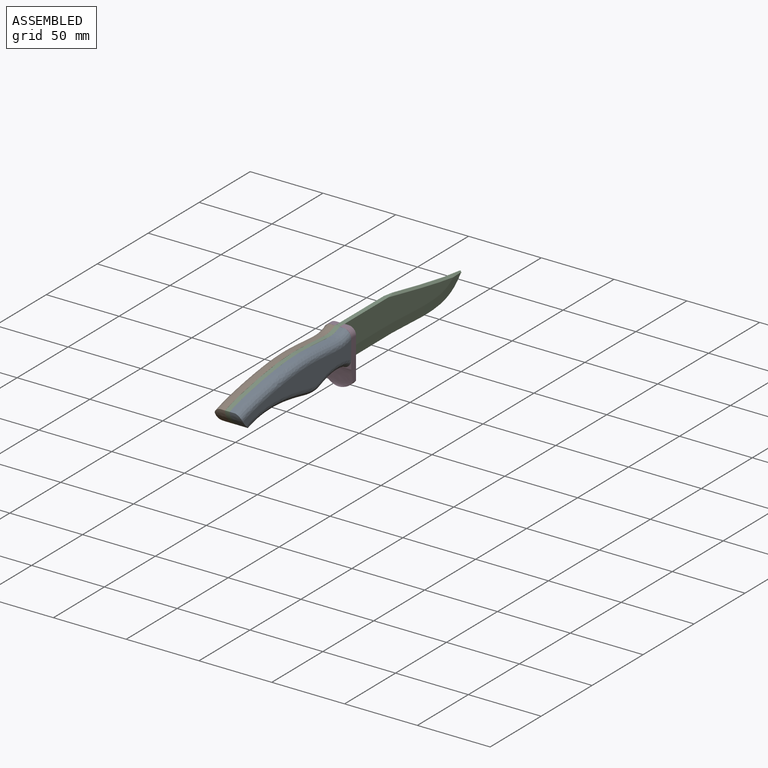
[diagram: assembled view]
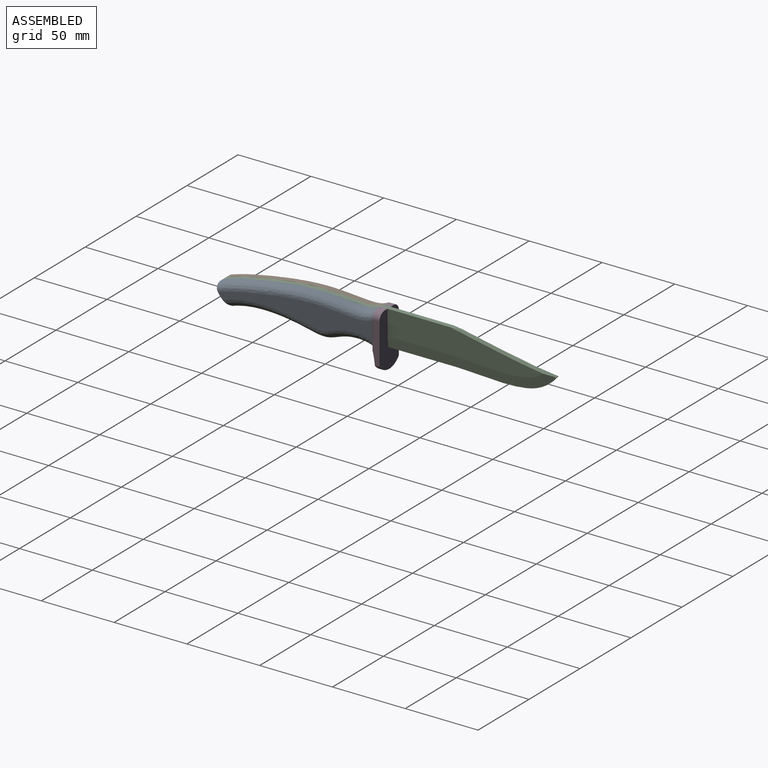
[diagram: assembled view, second angle]
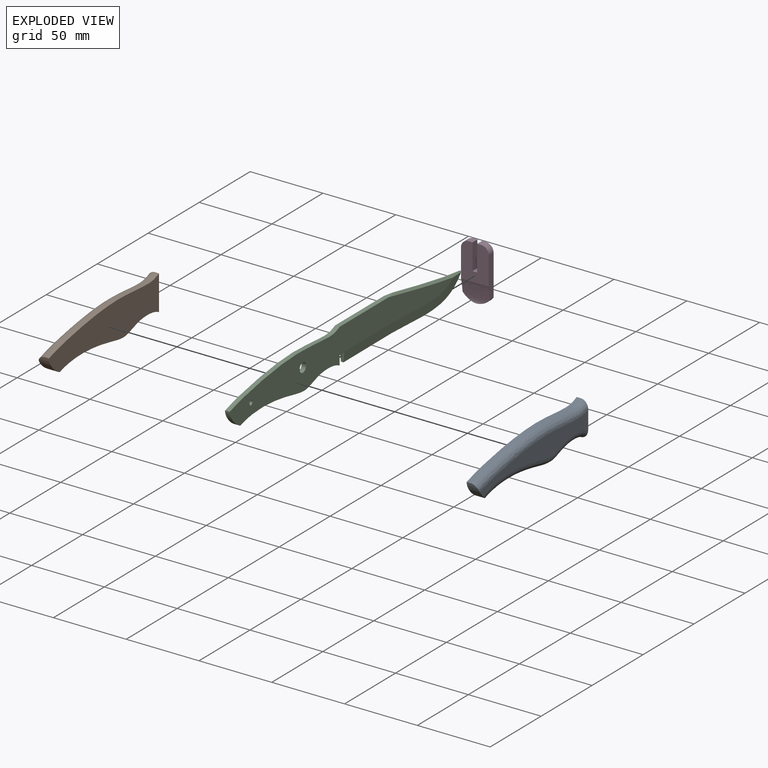
[diagram: exploded view]
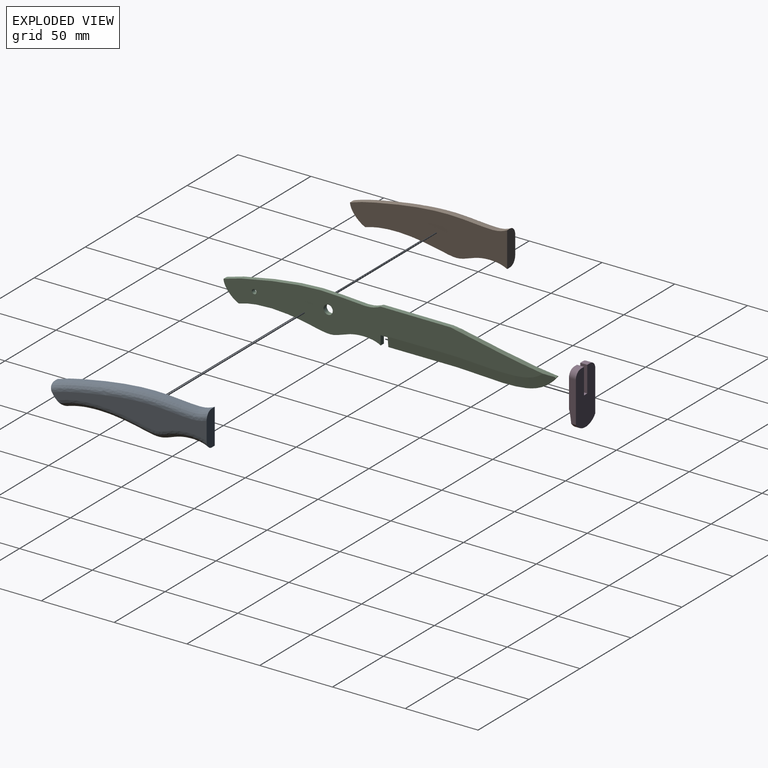
[diagram: exploded view, second angle]
ASSEMBLY  parts=4 mates=3
PART A: 8 faces, bbox 8.9x112.9x28.9 mm
  f0: extruded ~97.47x5.39mm, area 283.7mm2, adj f1,f3,f4,f7
  f1: plane 25.04x8.87mm, normal (0,1,0), area 179mm2, adj f0,f2,f4,f5,f6,f7
  f2: extruded ~107.95x11.57mm, area 312.7mm2, adj f1,f3,f4,f6
  f3: extruded ~12.54x10.48mm, area 106.7mm2, adj f0,f2,f4,f5,f6,f7
  f4: plane 107.95x27.95mm, normal (-1,0,0), area 2068.5mm2, adj f0,f1,f2,f3
  f5: plane 106.32x15.83mm, normal (1,0,0), area 996.6mm2, adj f1,f3,f6,f7
  f6: bspline ~111.25x16.86mm, area 865.5mm2, adj f1,f2,f3,f5
  f7: bspline ~108.56x10.48mm, area 810.4mm2, adj f0,f1,f3,f5
PART B: 8 faces, bbox 8.9x112.9x28.9 mm
  f0: extruded ~97.47x5.39mm, area 283.7mm2, adj f1,f3,f4,f7
  f1: plane 25.04x8.87mm, normal (0,1,0), area 179mm2, adj f0,f2,f4,f5,f6,f7
  f2: extruded ~107.95x11.57mm, area 312.7mm2, adj f1,f3,f4,f6
  f3: extruded ~12.54x10.48mm, area 106.7mm2, adj f0,f2,f4,f5,f6,f7
  f4: plane 107.95x27.95mm, normal (1,0,0), area 2068.5mm2, adj f0,f1,f2,f3
  f5: plane 106.32x15.83mm, normal (-1,0,0), area 996.7mm2, adj f1,f3,f6,f7
  f6: bspline ~111.25x16.86mm, area 865.5mm2, adj f1,f2,f3,f5
  f7: bspline ~108.56x10.48mm, area 810.4mm2, adj f0,f1,f3,f5
PART C: 22 faces, bbox 3.2x232.2x29.3 mm
  f0: plane 6.35x3.08mm, normal (0,-1,0), area 15.3mm2, adj f1,f4,f15,f18
  f1: extruded ~115.89x13.71mm, area 209.7mm2, adj f0,f2,f14,f15,f17,f18,f20,f21
  f2: extruded ~66.35x11.57mm, area 42.8mm2, adj f1,f5,f20,f21
  f3: plane 6.35x3.18mm, normal (0,1,0), area 20.2mm2, adj f4,f11,f12,f13
  f4: plane 4.76x3.18mm, normal (0,0,-1), area 15.1mm2, adj f0,f3,f12,f13,f16,f19
  f5: plane 49.54x3.18mm, normal (0,0,1), area 149.2mm2, adj f2,f6,f12,f13,f20,f21
  f6: plane 4.76x3.18mm, normal (0,0,1), area 15.1mm2, adj f5,f7,f12,f13
  f7: extruded ~107.95x11.57mm, area 347.5mm2, adj f6,f8,f12,f13
  f8: extruded ~12.54x10.48mm, area 54.1mm2, adj f7,f11,f12,f13
  f9: cylinder r=3.17mm len=6.35mm, axis (-1,0,0), area 63.3mm2, adj f12,f13
  f10: cylinder r=1.59mm len=3.18mm, axis (-1,0,0), area 31.7mm2, adj f12,f13
  f11: extruded ~97.47x5.39mm, area 315.2mm2, adj f3,f8,f12,f13
  f12: plane 219.35x27.96mm, normal (1,0,0), area 3569.2mm2, adj f3,f4,f5,f6,f7,f8,f9,f10
  f13: plane 219.35x27.96mm, normal (-1,0,0), area 3569.2mm2, adj f3,f4,f5,f6,f7,f8,f9,f10
  f14: plane 0.59x0.45mm, normal (0,-0.59,-0.81), area 0.2mm2, adj f1,f15,f20
  f15: bspline ~115.18x16.78mm, area 776.5mm2, adj f0,f1,f13,f14,f16,f20
  f16: plane 0.44x0.05mm, normal (0,1,0), area 0mm2, adj f4,f13,f15
  f17: plane 0.59x0.45mm, normal (0,-0.59,-0.81), area 0.2mm2, adj f1,f18,f21
  f18: bspline ~115.18x16.78mm, area 776.5mm2, adj f0,f1,f12,f17,f19,f21
  f19: plane 0.44x0.05mm, normal (0,1,0), area 0mm2, adj f4,f12,f18
  f20: bspline ~79.96x15.08mm, area 122mm2, adj f1,f2,f5,f13,f14,f15
  f21: bspline ~79.96x15.08mm, area 122mm2, adj f1,f2,f5,f12,f17,f18
PART D: 13 faces, bbox 19.1x4.9x38 mm
  f0: plane 24.56x19.05mm, normal (0,-1,0), area 400.4mm2, adj f1,f2,f5,f6,f7,f8,f9,f10
  f1: plane 28.24x4.91mm, normal (-1,0,0), area 125.8mm2, adj f0,f3,f4,f10,f12
  f2: plane 28.24x4.91mm, normal (1,0,0), area 125.8mm2, adj f0,f3,f4,f11,f12
  f3: cylinder r=11.86mm len=19.05mm, axis (0,-1,0), area 71.3mm2, adj f1,f2,f4,f12
  f4: plane 37.97x19.05mm, normal (0,1,0), area 628.2mm2, adj f1,f2,f3,f5,f6,f7,f8,f9
  f5: plane 17.78x4.76mm, normal (-1,0,0), area 84.7mm2, adj f0,f4,f6,f9
  f6: plane 4.76x3.18mm, normal (0,0,1), area 15.1mm2, adj f0,f4,f5,f7
  f7: plane 17.78x4.76mm, normal (1,0,0), area 84.7mm2, adj f0,f4,f6,f8
  f8: plane 4.76x2.86mm, normal (0,0,1), area 13.6mm2, adj f0,f4,f7,f10
  f9: plane 4.76x2.86mm, normal (0,0,1), area 13.6mm2, adj f0,f4,f5,f11
  f10: cylinder r=5.08mm len=5.08mm, axis (0,-1,0), area 38mm2, adj f0,f1,f4,f8
  f11: cylinder r=5.08mm len=5.08mm, axis (0,1,0), area 38mm2, adj f0,f2,f4,f9
  f12: extruded ~19.05x13.4mm, area 231.3mm2, adj f0,f1,f2,f3
PLACE A t=(-44.76,-24.39,10.87)mm
PLACE B t=(-51.11,-24.39,10.87)mm
PLACE C t=(-47.94,-24.39,10.87)mm
PLACE D t=(-47.94,-19.63,3.41)mm
MATE fastened D.f6 <-> C.f4  axis (0,0,1) through (-47.94,-22.01,4.68)mm
MATE fastened B.f4 <-> C.f13  axis (1,0,0) through (-49.52,-132.34,10.87)mm
MATE fastened A.f4 <-> C.f12  axis (-1,0,0) through (-46.35,-132.34,10.87)mm
